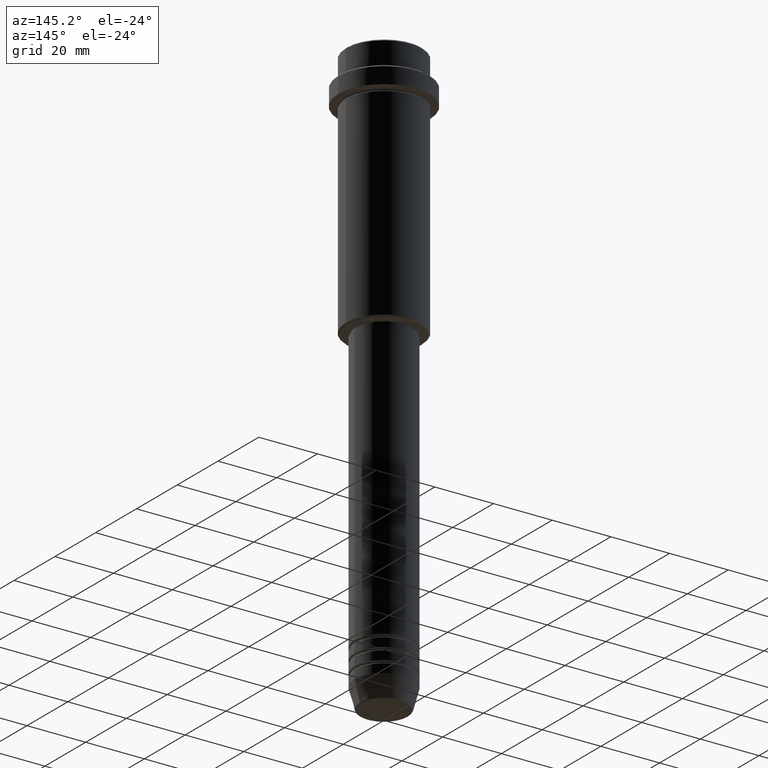
[diagram: clean part render]
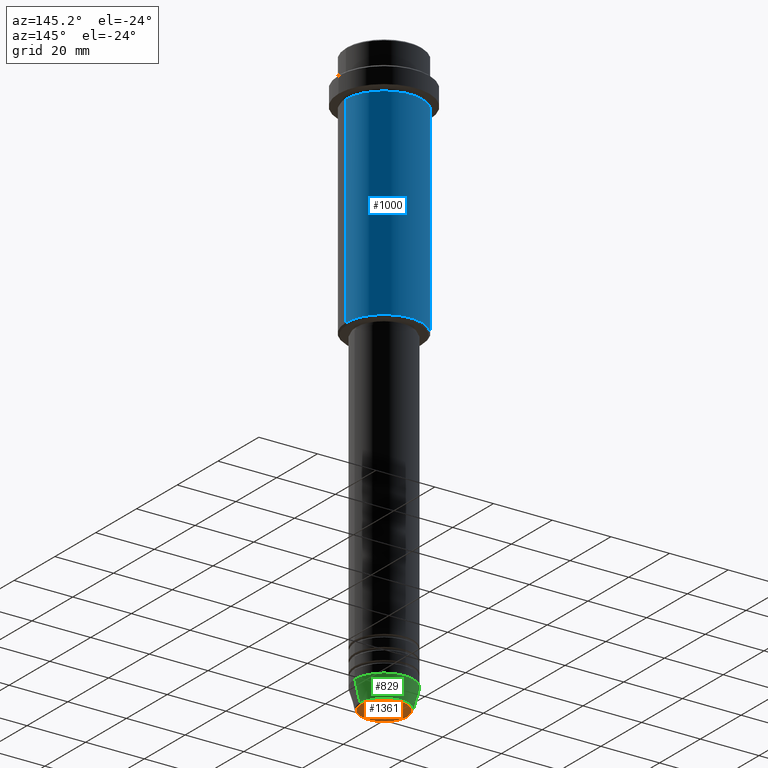
[diagram: same view with three faces highlighted in distinct colors, each labeled with its STEP entity id]
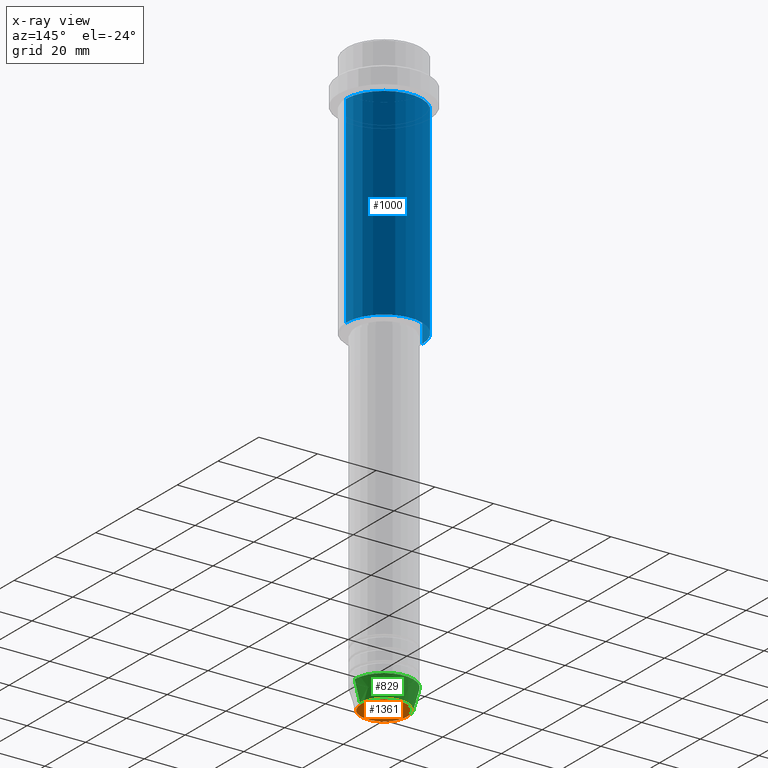
[diagram: x-ray of the same camera — body ghosted, the three highlighted faces saturated]
A machine part, auxiliary view with three faces highlighted in distinct colors.
The next image is the same camera in x-ray (body ghosted, the three faces saturated) — at least one of them is partly hidden behind the body in this view.
Their STEP definitions:

[orange] entity #1361 — the highlighted planar face has unit normal (0, -0, 1).
#52 = VERTEX_POINT ( 'NONE', #311 ) ;
#60 = EDGE_LOOP ( 'NONE', ( #583, #488 ) ) ;
#145 = DIRECTION ( 'NONE',  ( 0.000000000000000000, -0.000000000000000000, 1.000000000000000000 ) ) ;
#167 = DIRECTION ( 'NONE',  ( 0.000000000000000000, 0.000000000000000000, -1.000000000000000000 ) ) ;
#178 = DIRECTION ( 'NONE',  ( 0.000000000000000000, 0.000000000000000000, -1.000000000000000000 ) ) ;
#198 = VERTEX_POINT ( 'NONE', #896 ) ;
#290 = EDGE_CURVE ( 'NONE', #198, #52, #714, .T. ) ;
#311 = CARTESIAN_POINT ( 'NONE',  ( 7.740692158992664496, 0.000000000000000000, -200.0000000000000000 ) ) ;
#316 = AXIS2_PLACEMENT_3D ( 'NONE', #1153, #178, #777 ) ;
#377 = CARTESIAN_POINT ( 'NONE',  ( 0.000000000000000000, 0.000000000000000000, -200.0000000000000000 ) ) ;
#488 = ORIENTED_EDGE ( 'NONE', *, *, #290, .T. ) ;
#543 = CIRCLE ( 'NONE', #316, 7.740692158992664496 ) ;
#545 = AXIS2_PLACEMENT_3D ( 'NONE', #1141, #145, #1028 ) ;
#583 = ORIENTED_EDGE ( 'NONE', *, *, #1112, .T. ) ;
#714 = CIRCLE ( 'NONE', #952, 7.740692158992664496 ) ;
#777 = DIRECTION ( 'NONE',  ( 1.000000000000000000, 0.000000000000000000, 0.000000000000000000 ) ) ;
#896 = CARTESIAN_POINT ( 'NONE',  ( -7.740692158992664496, 9.775343368540045052E-16, -200.0000000000000000 ) ) ;
#952 = AXIS2_PLACEMENT_3D ( 'NONE', #377, #167, #1036 ) ;
#1028 = DIRECTION ( 'NONE',  ( 1.000000000000000000, 0.000000000000000000, 0.000000000000000000 ) ) ;
#1036 = DIRECTION ( 'NONE',  ( 1.000000000000000000, 0.000000000000000000, 0.000000000000000000 ) ) ;
#1112 = EDGE_CURVE ( 'NONE', #52, #198, #543, .T. ) ;
#1123 = PLANE ( 'NONE',  #545 ) ;
#1141 = CARTESIAN_POINT ( 'NONE',  ( 0.000000000000000000, 0.000000000000000000, -200.0000000000000000 ) ) ;
#1153 = CARTESIAN_POINT ( 'NONE',  ( 0.000000000000000000, 0.000000000000000000, -200.0000000000000000 ) ) ;
#1332 = FACE_OUTER_BOUND ( 'NONE', #60, .T. ) ;
#1361 = ADVANCED_FACE ( 'NONE', ( #1332 ), #1123, .F. ) ;

[blue] entity #1000 — the highlighted cylindrical surface (partial cylindrical patch) has radius 13 mm, axis along (-0, -0, 1).
#7 = LINE ( 'NONE', #1261, #232 ) ;
#21 = VERTEX_POINT ( 'NONE', #1168 ) ;
#150 = CARTESIAN_POINT ( 'NONE',  ( -13.00000000000000000, 1.592040838891559095E-15, -84.50000000000004263 ) ) ;
#174 = DIRECTION ( 'NONE',  ( -0.000000000000000000, -0.000000000000000000, 1.000000000000000000 ) ) ;
#219 = CARTESIAN_POINT ( 'NONE',  ( 0.000000000000000000, 0.000000000000000000, 0.000000000000000000 ) ) ;
#232 = VECTOR ( 'NONE', #281, 1000.000000000000000 ) ;
#281 = DIRECTION ( 'NONE',  ( -0.000000000000000000, -0.000000000000000000, 1.000000000000000000 ) ) ;
#301 = ORIENTED_EDGE ( 'NONE', *, *, #315, .F. ) ;
#313 = VECTOR ( 'NONE', #1255, 1000.000000000000000 ) ;
#315 = EDGE_CURVE ( 'NONE', #833, #21, #741, .T. ) ;
#390 = CARTESIAN_POINT ( 'NONE',  ( 13.00000000000000000, 0.000000000000000000, -84.50000000000004263 ) ) ;
#398 = CARTESIAN_POINT ( 'NONE',  ( -13.00000000000000000, 1.592040838891559095E-15, 0.000000000000000000 ) ) ;
#435 = CYLINDRICAL_SURFACE ( 'NONE', #931, 13.00000000000000000 ) ;
#594 = ORIENTED_EDGE ( 'NONE', *, *, #1075, .F. ) ;
#597 = LINE ( 'NONE', #398, #313 ) ;
#729 = CARTESIAN_POINT ( 'NONE',  ( 0.000000000000000000, 0.000000000000000000, -84.50000000000004263 ) ) ;
#741 = CIRCLE ( 'NONE', #1294, 13.00000000000000000 ) ;
#765 = FACE_OUTER_BOUND ( 'NONE', #1129, .T. ) ;
#820 = EDGE_CURVE ( 'NONE', #1058, #1317, #1023, .T. ) ;
#833 = VERTEX_POINT ( 'NONE', #955 ) ;
#837 = AXIS2_PLACEMENT_3D ( 'NONE', #729, #946, #854 ) ;
#844 = ORIENTED_EDGE ( 'NONE', *, *, #922, .T. ) ;
#854 = DIRECTION ( 'NONE',  ( -1.000000000000000000, 0.000000000000000000, 0.000000000000000000 ) ) ;
#922 = EDGE_CURVE ( 'NONE', #1317, #21, #597, .T. ) ;
#923 = DIRECTION ( 'NONE',  ( 1.000000000000000000, 0.000000000000000000, 0.000000000000000000 ) ) ;
#931 = AXIS2_PLACEMENT_3D ( 'NONE', #219, #1306, #1405 ) ;
#946 = DIRECTION ( 'NONE',  ( -0.000000000000000000, -0.000000000000000000, 1.000000000000000000 ) ) ;
#955 = CARTESIAN_POINT ( 'NONE',  ( 13.00000000000000000, 0.000000000000000000, -16.00000000000000000 ) ) ;
#1000 = ADVANCED_FACE ( 'NONE', ( #765 ), #435, .T. ) ;
#1023 = CIRCLE ( 'NONE', #837, 13.00000000000000000 ) ;
#1058 = VERTEX_POINT ( 'NONE', #390 ) ;
#1075 = EDGE_CURVE ( 'NONE', #1058, #833, #7, .T. ) ;
#1129 = EDGE_LOOP ( 'NONE', ( #1139, #844, #301, #594 ) ) ;
#1139 = ORIENTED_EDGE ( 'NONE', *, *, #820, .T. ) ;
#1148 = CARTESIAN_POINT ( 'NONE',  ( 0.000000000000000000, 0.000000000000000000, -16.00000000000000000 ) ) ;
#1168 = CARTESIAN_POINT ( 'NONE',  ( -13.00000000000000000, 1.592040838891559095E-15, -16.00000000000000000 ) ) ;
#1255 = DIRECTION ( 'NONE',  ( -0.000000000000000000, -0.000000000000000000, 1.000000000000000000 ) ) ;
#1261 = CARTESIAN_POINT ( 'NONE',  ( 13.00000000000000000, 0.000000000000000000, 0.000000000000000000 ) ) ;
#1294 = AXIS2_PLACEMENT_3D ( 'NONE', #1148, #174, #923 ) ;
#1306 = DIRECTION ( 'NONE',  ( -0.000000000000000000, -0.000000000000000000, 1.000000000000000000 ) ) ;
#1317 = VERTEX_POINT ( 'NONE', #150 ) ;
#1405 = DIRECTION ( 'NONE',  ( 1.000000000000000000, 0.000000000000000000, 0.000000000000000000 ) ) ;

[green] entity #829 — the highlighted conical surface has half-angle 15 deg.
#8 = EDGE_CURVE ( 'NONE', #1215, #1192, #880, .T. ) ;
#18 = CARTESIAN_POINT ( 'NONE',  ( 10.00000000000000000, 0.000000000000000000, -193.0000000000000000 ) ) ;
#22 = AXIS2_PLACEMENT_3D ( 'NONE', #186, #421, #840 ) ;
#84 = DIRECTION ( 'NONE',  ( 1.000000000000000000, 0.000000000000000000, 0.000000000000000000 ) ) ;
#90 = AXIS2_PLACEMENT_3D ( 'NONE', #1272, #975, #84 ) ;
#131 = CARTESIAN_POINT ( 'NONE',  ( -10.00000000000000000, 1.224646799147353256E-15, -193.0000000000000000 ) ) ;
#148 = VERTEX_POINT ( 'NONE', #1190 ) ;
#186 = CARTESIAN_POINT ( 'NONE',  ( 0.000000000000000000, 0.000000000000000000, -193.0000000000000000 ) ) ;
#241 = LINE ( 'NONE', #131, #1226 ) ;
#272 = AXIS2_PLACEMENT_3D ( 'NONE', #1368, #286, #1264 ) ;
#286 = DIRECTION ( 'NONE',  ( -0.000000000000000000, -0.000000000000000000, 1.000000000000000000 ) ) ;
#309 = CARTESIAN_POINT ( 'NONE',  ( 10.00000000000000000, 0.000000000000000000, -193.0000000000000000 ) ) ;
#332 = EDGE_CURVE ( 'NONE', #148, #1215, #1187, .T. ) ;
#393 = DIRECTION ( 'NONE',  ( 0.2588190451025205174, 0.000000000000000000, 0.9659258262890684232 ) ) ;
#406 = ORIENTED_EDGE ( 'NONE', *, *, #8, .F. ) ;
#421 = DIRECTION ( 'NONE',  ( -0.000000000000000000, -0.000000000000000000, 1.000000000000000000 ) ) ;
#495 = CONICAL_SURFACE ( 'NONE', #90, 10.00000000000000000, 0.2617993877991491303 ) ;
#533 = FACE_OUTER_BOUND ( 'NONE', #1335, .T. ) ;
#554 = ORIENTED_EDGE ( 'NONE', *, *, #1243, .T. ) ;
#675 = ORIENTED_EDGE ( 'NONE', *, *, #936, .T. ) ;
#697 = CIRCLE ( 'NONE', #272, 8.223655072137193045 ) ;
#787 = VERTEX_POINT ( 'NONE', #1098 ) ;
#829 = ADVANCED_FACE ( 'NONE', ( #533 ), #495, .T. ) ;
#840 = DIRECTION ( 'NONE',  ( 1.000000000000000000, 0.000000000000000000, 0.000000000000000000 ) ) ;
#858 = VECTOR ( 'NONE', #393, 1000.000000000000114 ) ;
#880 = CIRCLE ( 'NONE', #22, 10.00000000000000000 ) ;
#936 = EDGE_CURVE ( 'NONE', #148, #787, #697, .T. ) ;
#975 = DIRECTION ( 'NONE',  ( -0.000000000000000000, -0.000000000000000000, 1.000000000000000000 ) ) ;
#1081 = DIRECTION ( 'NONE',  ( -0.2588190451025205174, 3.169619151431761243E-17, 0.9659258262890684232 ) ) ;
#1098 = CARTESIAN_POINT ( 'NONE',  ( -8.223655072137193045, 1.115877042642912251E-15, -199.6294095225512990 ) ) ;
#1149 = ORIENTED_EDGE ( 'NONE', *, *, #332, .F. ) ;
#1187 = LINE ( 'NONE', #309, #858 ) ;
#1190 = CARTESIAN_POINT ( 'NONE',  ( 8.223655072137193045, 0.000000000000000000, -199.6294095225512990 ) ) ;
#1192 = VERTEX_POINT ( 'NONE', #1313 ) ;
#1215 = VERTEX_POINT ( 'NONE', #18 ) ;
#1226 = VECTOR ( 'NONE', #1081, 1000.000000000000114 ) ;
#1243 = EDGE_CURVE ( 'NONE', #787, #1192, #241, .T. ) ;
#1264 = DIRECTION ( 'NONE',  ( 1.000000000000000000, 0.000000000000000000, 0.000000000000000000 ) ) ;
#1272 = CARTESIAN_POINT ( 'NONE',  ( 0.000000000000000000, 0.000000000000000000, -193.0000000000000000 ) ) ;
#1313 = CARTESIAN_POINT ( 'NONE',  ( -10.00000000000000000, 1.224646799147353256E-15, -193.0000000000000000 ) ) ;
#1335 = EDGE_LOOP ( 'NONE', ( #675, #554, #406, #1149 ) ) ;
#1368 = CARTESIAN_POINT ( 'NONE',  ( 0.000000000000000000, 0.000000000000000000, -199.6294095225512990 ) ) ;